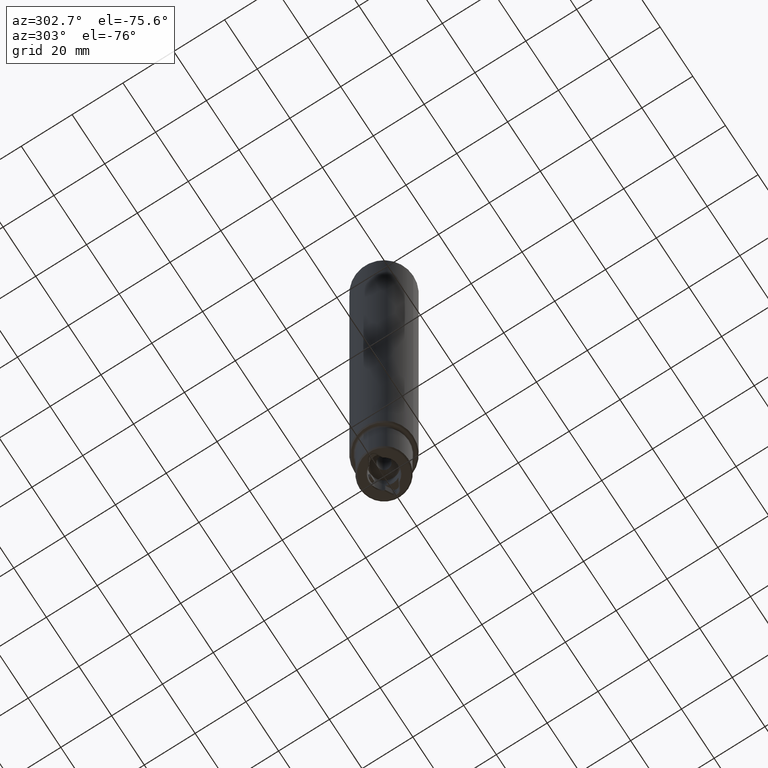
[diagram: clean part render]
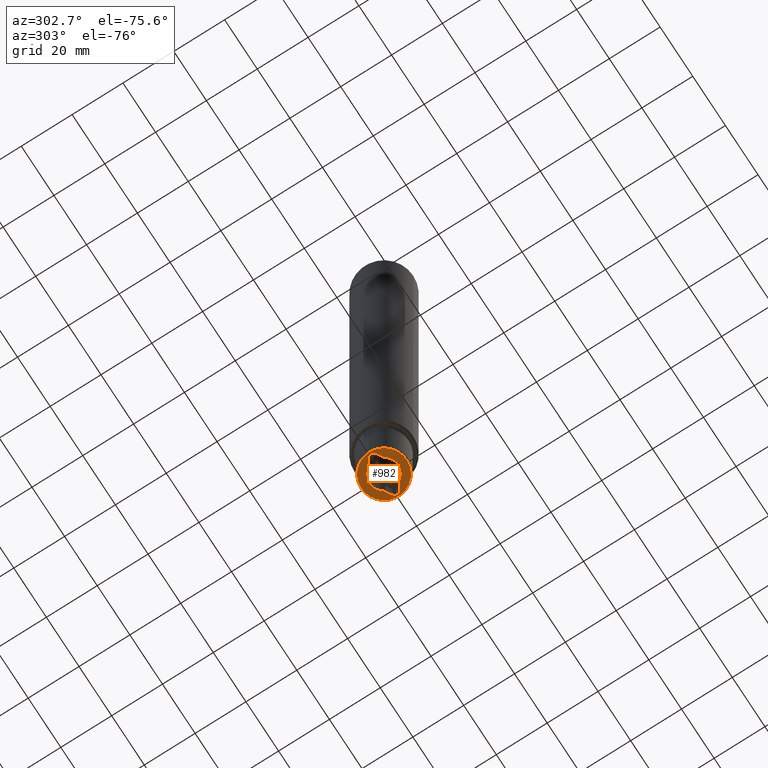
[diagram: same view with one face highlighted and labeled with its STEP entity id]
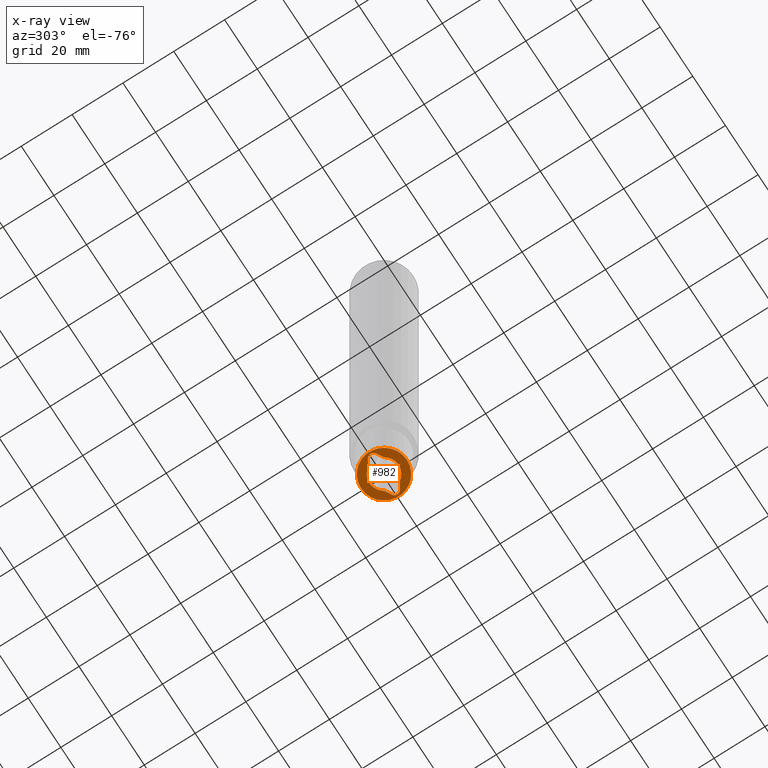
[diagram: x-ray of the same camera — body ghosted, the highlighted face saturated]
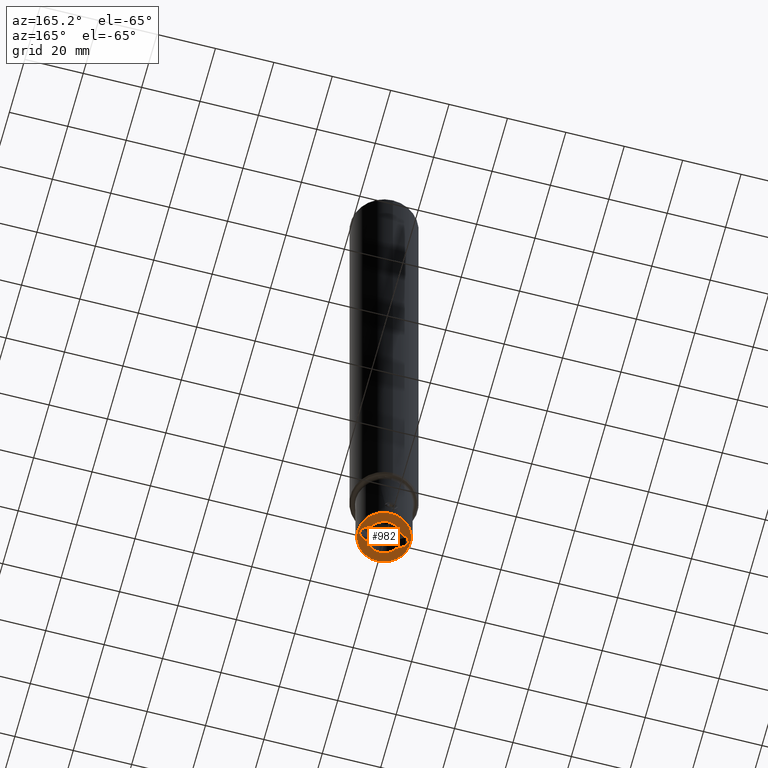
[diagram: same view with one face highlighted and labeled with its STEP entity id]
A machine part, auxiliary view. The second image highlights one B-rep face of the part: STEP entity #982.
The next image is the same camera in x-ray: the body ghosted, the highlighted face saturated — about 0% of this face is hidden behind the body in this view.
A second angle (auxiliary view) of the same face is appended — the face is thin or edge-on in the first view.
In plain terms, the highlighted planar face has unit normal (0, 0, 1).
Its self-contained STEP definition (entity closure, byte-faithful):
#394=VERTEX_POINT('NONE',#1100);
#422=VERTEX_POINT('NONE',#1132);
#476=VERTEX_POINT('NONE',#1192);
#502=VERTEX_POINT('NONE',#1222);
#522=VERTEX_POINT('NONE',#1243);
#542=EDGE_CURVE('NONE',#1024,#724,#1265,.T.);
#590=EDGE_CURVE('NONE',#394,#1024,#1318,.T.);
#630=EDGE_CURVE('NONE',#846,#522,#1361,.T.);
#692=EDGE_CURVE('NONE',#476,#422,#1428,.T.);
#724=VERTEX_POINT('NONE',#1467);
#788=EDGE_CURVE('NONE',#938,#1002,#1537,.F.);
#846=VERTEX_POINT('NONE',#1602);
#938=VERTEX_POINT('NONE',#1702);
#950=EDGE_CURVE('NONE',#724,#502,#1715,.T.);
#968=EDGE_CURVE('NONE',#502,#476,#1735,.T.);
#982=ADVANCED_FACE('NONE',(#1750,#1751),#1752,.F.);
#986=EDGE_CURVE('NONE',#522,#394,#1756,.T.);
#1002=VERTEX_POINT('NONE',#1775);
#1012=EDGE_CURVE('NONE',#1002,#938,#1786,.F.);
#1024=VERTEX_POINT('NONE',#1801);
#1036=EDGE_CURVE('NONE',#422,#846,#1813,.T.);
#1100=CARTESIAN_POINT('',(-4.86419003432022,-3.05176380657044,-4.44089209850063E-016));
#1132=CARTESIAN_POINT('',(7.3,1.64544826719046,-8.85820279974966E-017));
#1192=CARTESIAN_POINT('',(4.86419003432021,3.05176380657045,0.0));
#1222=CARTESIAN_POINT('',(-4.86419003432023,3.05176380657042,-8.88178419700125E-016));
#1243=CARTESIAN_POINT('',(4.86419003432023,-3.05176380657042,-1.8955374869837E-015));
#1265=CIRCLE('',#2183,1.9);
#1318=LINE('',#2253,#2254);
#1361=LINE('',#2317,#2318);
#1428=LINE('',#2403,#2404);
#1467=CARTESIAN_POINT('',(-7.30000000000001,1.64544826719042,1.44093179228755E-016));
#1537=CIRCLE('',#2639,9.0);
#1602=CARTESIAN_POINT('',(7.30000000000001,-1.64544826719042,-8.85820279974967E-017));
#1702=CARTESIAN_POINT('',(2.1996079354426E-014,-9.0,-1.30104260698261E-015));
#1715=LINE('',#3029,#3030);
#1735=CIRCLE('',#3110,5.74226497308104);
#1750=FACE_OUTER_BOUND('',#3166,.T.);
#1751=FACE_BOUND('',#3167,.T.);
#1752=PLANE('',#3168);
#1756=CIRCLE('',#3173,5.74226497308104);
#1775=CARTESIAN_POINT('',(-2.31288402317117E-014,9.0,-1.30104260698261E-015));
#1786=CIRCLE('',#3210,9.0);
#1801=CARTESIAN_POINT('',(-7.3,-1.64544826719046,1.44093179228755E-016));
#1813=CIRCLE('',#3256,1.90000000000001);
#2183=AXIS2_PLACEMENT_3D('',#3479,#3480,#3481);
#2253=CARTESIAN_POINT('',(-6.64663568297002,-2.02266833150661,-5.27355936696949E-016));
#2254=VECTOR('',#3547,1.0);
#2317=CARTESIAN_POINT('',(0.793749999999998,-5.40183345610543,-1.77635683940025E-015));
#2318=VECTOR('',#3598,1.0);
#2403=CARTESIAN_POINT('',(-1.60336431703001,6.78580805232099,-8.88178419700125E-016));
#2404=VECTOR('',#3669,0.999999999999999);
#2639=AXIS2_PLACEMENT_3D('',#3835,#3836,#3837);
#3029=CARTESIAN_POINT('',(-9.04375000000001,0.638693735291012,-1.94289029309402E-016));
#3030=VECTOR('',#4031,1.0);
#3110=AXIS2_PLACEMENT_3D('',#4053,#4054,#4055);
#3166=EDGE_LOOP('',(#4068,#4069));
#3167=EDGE_LOOP('',(#4070,#4071,#4072,#4073,#4074,#4075,#4076,#4077));
#3168=AXIS2_PLACEMENT_3D('',#4078,#4079,#4080);
#3173=AXIS2_PLACEMENT_3D('',#4081,#4082,#4083);
#3210=AXIS2_PLACEMENT_3D('',#4124,#4125,#4126);
#3256=AXIS2_PLACEMENT_3D('',#4162,#4163,#4164);
#3479=CARTESIAN_POINT('',(-6.35000000000001,-1.43441979628688E-014,2.77555756156289E-017));
#3480=DIRECTION('',(-1.22460635382238E-016,-3.0660775633062E-031,-1.0));
#3481=DIRECTION('',(2.29086902488574E-015,-1.0,2.60664799656249E-032));
#3547=DIRECTION('',(-0.866025403784441,0.499999999999996,1.06054021204601E-016));
#3598=DIRECTION('',(-0.866025403784439,-0.5,1.06054021204602E-016));
#3669=DIRECTION('',(0.866025403784441,-0.499999999999996,-1.06054021204601E-016));
#3835=CARTESIAN_POINT('',(0.0,0.0,0.0));
#3836=DIRECTION('',(-1.22460635382238E-016,-3.0660775633062E-031,-1.0));
#3837=DIRECTION('',(-2.50372501639896E-015,1.0,-1.16774872027068E-046));
#4031=DIRECTION('',(0.866025403784438,0.500000000000001,-1.06054021204601E-016));
#4053=CARTESIAN_POINT('',(4.60374596028002E-016,1.15265139298987E-030,-1.30451205393456E-015));
#4054=DIRECTION('',(-1.22460635382238E-016,-3.0660775633062E-031,-1.0));
#4055=DIRECTION('',(-1.0,-2.50372501639896E-015,1.22460635382238E-016));
#4068=ORIENTED_EDGE('',*,*,#1012,.F.);
#4069=ORIENTED_EDGE('',*,*,#788,.F.);
#4070=ORIENTED_EDGE('',*,*,#692,.F.);
#4071=ORIENTED_EDGE('',*,*,#968,.F.);
#4072=ORIENTED_EDGE('',*,*,#950,.F.);
#4073=ORIENTED_EDGE('',*,*,#542,.F.);
#4074=ORIENTED_EDGE('',*,*,#590,.F.);
#4075=ORIENTED_EDGE('',*,*,#986,.F.);
#4076=ORIENTED_EDGE('',*,*,#630,.F.);
#4077=ORIENTED_EDGE('',*,*,#1036,.F.);
#4078=CARTESIAN_POINT('',(-11.0,-2.75409751803886E-014,2.30121911110048E-017));
#4079=DIRECTION('',(1.22460635382238E-016,3.0660775633062E-031,1.0));
#4080=DIRECTION('',(-1.22464679914735E-016,1.0,-2.91610653816379E-031));
#4081=CARTESIAN_POINT('',(4.60374596028002E-016,1.15265139298987E-030,-1.30451205393456E-015));
#4082=DIRECTION('',(-1.22460635382238E-016,-3.0660775633062E-031,-1.0));
#4083=DIRECTION('',(-1.0,-2.50372501639896E-015,1.22460635382238E-016));
#4124=CARTESIAN_POINT('',(0.0,0.0,0.0));
#4125=DIRECTION('',(-1.22460635382238E-016,-3.0660775633062E-031,-1.0));
#4126=DIRECTION('',(-2.50372501639896E-015,1.0,-1.16774872027068E-046));
#4162=CARTESIAN_POINT('',(6.35000000000001,1.58978596760436E-014,2.77555756156289E-017));
#4163=DIRECTION('',(-1.22460635382238E-016,-3.0660775633062E-031,-1.0));
#4164=DIRECTION('',(2.29086902488574E-015,-1.0,2.60664799656251E-032));